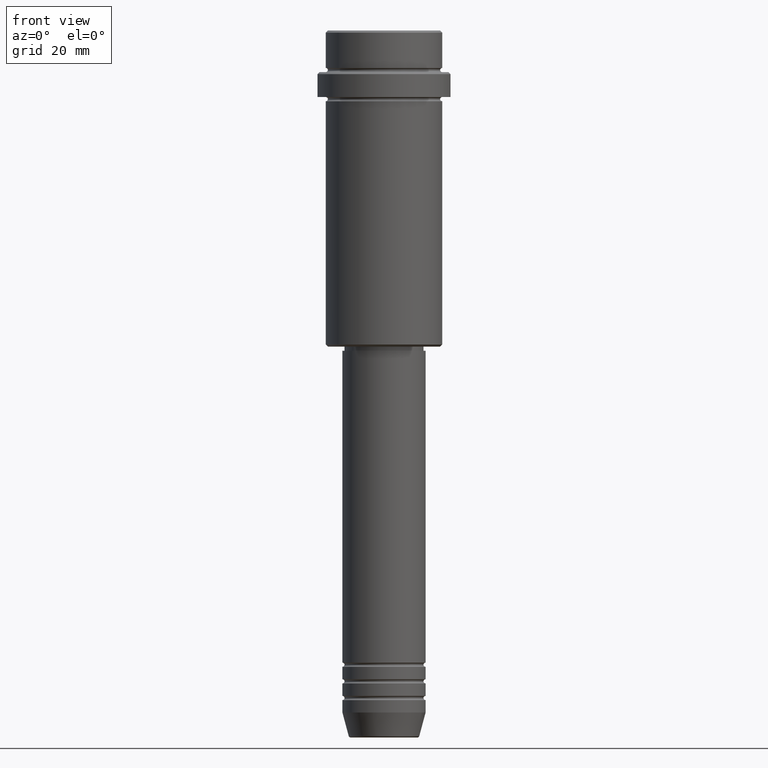
[diagram: clean part render]
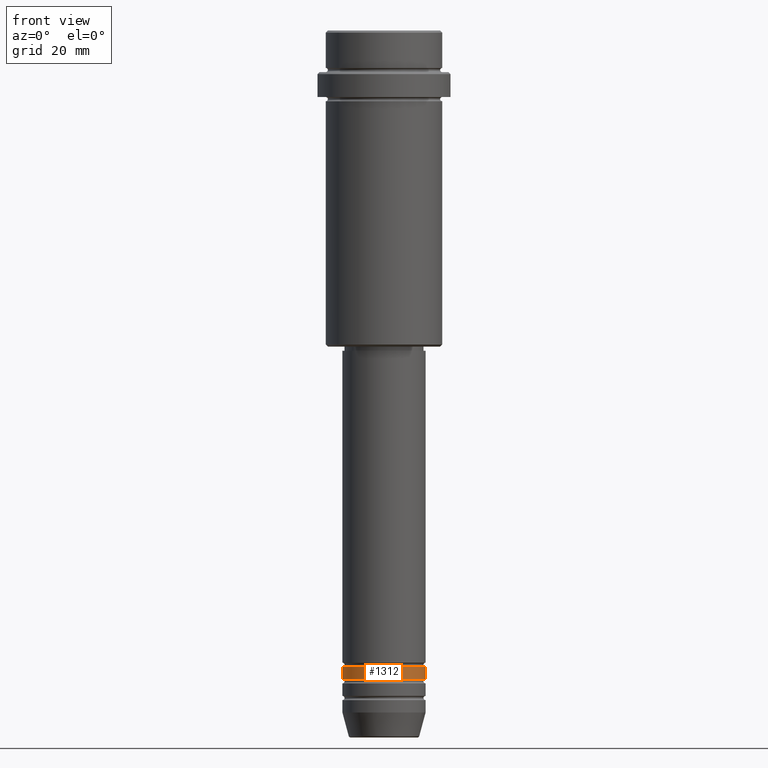
[diagram: same view with one face highlighted and labeled with its STEP entity id]
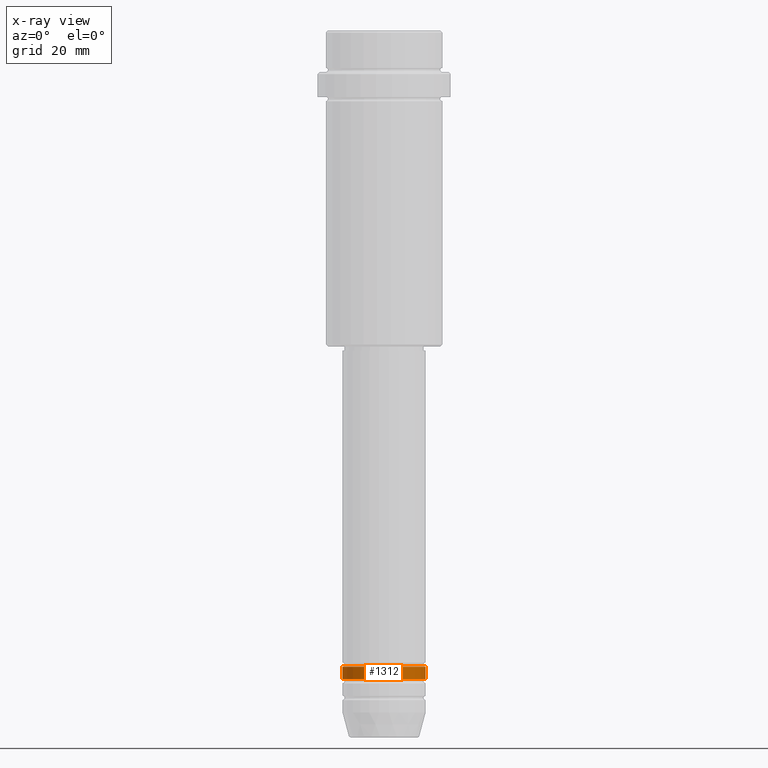
[diagram: x-ray of the same camera — body ghosted, the highlighted face saturated]
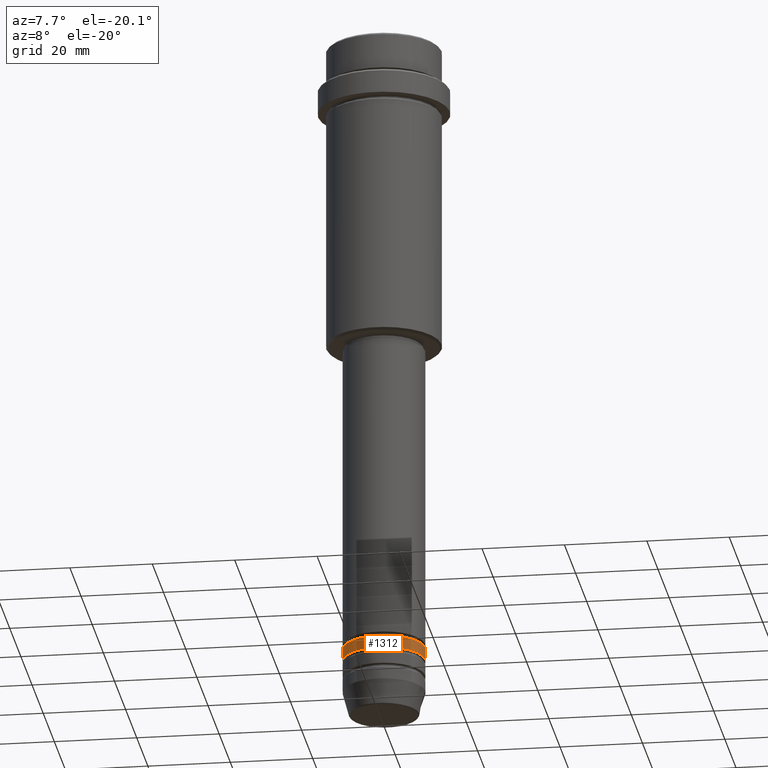
[diagram: same view with one face highlighted and labeled with its STEP entity id]
A machine part, front view. The second image highlights one B-rep face of the part: STEP entity #1312.
The next image is the same camera in x-ray: the body ghosted, the highlighted face saturated — about 0% of this face is hidden behind the body in this view.
A second angle (auxiliary view) of the same face is appended — the face is thin or edge-on in the first view.
In plain terms, the highlighted cylindrical surface (partial cylindrical patch) has radius 10 mm, axis along (-0, -0, 1).
Its self-contained STEP definition (entity closure, byte-faithful):
#18 = VECTOR ( 'NONE', #704, 1000.000000000000000 ) ;
#60 = EDGE_CURVE ( 'NONE', #596, #1114, #469, .T. ) ;
#71 = DIRECTION ( 'NONE',  ( -0.000000000000000000, -0.000000000000000000, 1.000000000000000000 ) ) ;
#89 = AXIS2_PLACEMENT_3D ( 'NONE', #431, #863, #1297 ) ;
#126 = VERTEX_POINT ( 'NONE', #274 ) ;
#131 = DIRECTION ( 'NONE',  ( -0.000000000000000000, -0.000000000000000000, 1.000000000000000000 ) ) ;
#150 = VECTOR ( 'NONE', #71, 1000.000000000000000 ) ;
#151 = DIRECTION ( 'NONE',  ( 1.000000000000000000, 0.000000000000000000, 0.000000000000000000 ) ) ;
#182 = LINE ( 'NONE', #1248, #150 ) ;
#190 = ORIENTED_EDGE ( 'NONE', *, *, #60, .T. ) ;
#215 = ORIENTED_EDGE ( 'NONE', *, *, #634, .T. ) ;
#232 = CARTESIAN_POINT ( 'NONE',  ( 10.00000000000000000, 0.000000000000000000, -155.9999999999998863 ) ) ;
#260 = DIRECTION ( 'NONE',  ( -0.000000000000000000, -0.000000000000000000, 1.000000000000000000 ) ) ;
#266 = CIRCLE ( 'NONE', #1077, 10.00000000000000000 ) ;
#274 = CARTESIAN_POINT ( 'NONE',  ( -10.00000000000000000, 1.224646799147353256E-15, -155.9999999999998863 ) ) ;
#323 = ORIENTED_EDGE ( 'NONE', *, *, #608, .F. ) ;
#431 = CARTESIAN_POINT ( 'NONE',  ( 0.000000000000000000, 0.000000000000000000, 0.000000000000000000 ) ) ;
#469 = LINE ( 'NONE', #1354, #18 ) ;
#566 = EDGE_LOOP ( 'NONE', ( #1277, #215, #190, #323 ) ) ;
#596 = VERTEX_POINT ( 'NONE', #232 ) ;
#608 = EDGE_CURVE ( 'NONE', #927, #1114, #786, .T. ) ;
#634 = EDGE_CURVE ( 'NONE', #126, #596, #266, .T. ) ;
#704 = DIRECTION ( 'NONE',  ( -0.000000000000000000, -0.000000000000000000, 1.000000000000000000 ) ) ;
#761 = EDGE_CURVE ( 'NONE', #126, #927, #182, .T. ) ;
#786 = CIRCLE ( 'NONE', #1238, 10.00000000000000000 ) ;
#797 = CARTESIAN_POINT ( 'NONE',  ( 10.00000000000000000, 0.000000000000000000, -152.9999999999998863 ) ) ;
#863 = DIRECTION ( 'NONE',  ( -0.000000000000000000, -0.000000000000000000, 1.000000000000000000 ) ) ;
#927 = VERTEX_POINT ( 'NONE', #1085 ) ;
#969 = FACE_OUTER_BOUND ( 'NONE', #566, .T. ) ;
#988 = CARTESIAN_POINT ( 'NONE',  ( 0.000000000000000000, 0.000000000000000000, -152.9999999999998863 ) ) ;
#997 = CARTESIAN_POINT ( 'NONE',  ( 0.000000000000000000, 0.000000000000000000, -155.9999999999998863 ) ) ;
#1077 = AXIS2_PLACEMENT_3D ( 'NONE', #997, #260, #1328 ) ;
#1085 = CARTESIAN_POINT ( 'NONE',  ( -10.00000000000000000, 1.224646799147353256E-15, -152.9999999999998863 ) ) ;
#1114 = VERTEX_POINT ( 'NONE', #797 ) ;
#1238 = AXIS2_PLACEMENT_3D ( 'NONE', #988, #131, #151 ) ;
#1248 = CARTESIAN_POINT ( 'NONE',  ( -10.00000000000000000, 1.224646799147353256E-15, 0.000000000000000000 ) ) ;
#1277 = ORIENTED_EDGE ( 'NONE', *, *, #761, .F. ) ;
#1293 = CYLINDRICAL_SURFACE ( 'NONE', #89, 10.00000000000000000 ) ;
#1297 = DIRECTION ( 'NONE',  ( 1.000000000000000000, 0.000000000000000000, 0.000000000000000000 ) ) ;
#1312 = ADVANCED_FACE ( 'NONE', ( #969 ), #1293, .T. ) ;
#1328 = DIRECTION ( 'NONE',  ( 1.000000000000000000, 0.000000000000000000, 0.000000000000000000 ) ) ;
#1354 = CARTESIAN_POINT ( 'NONE',  ( 10.00000000000000000, 0.000000000000000000, 0.000000000000000000 ) ) ;